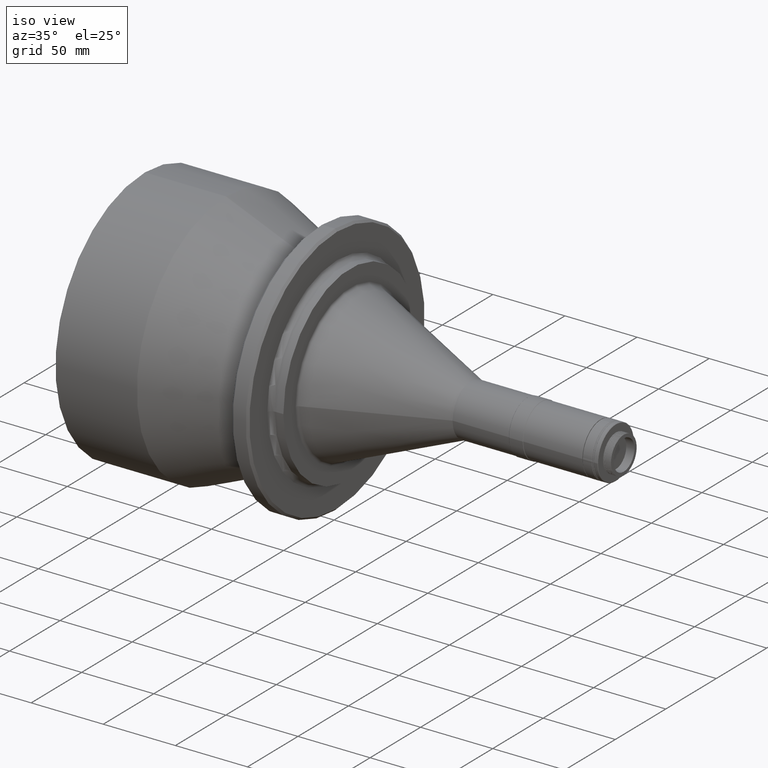
[diagram: clean part render]
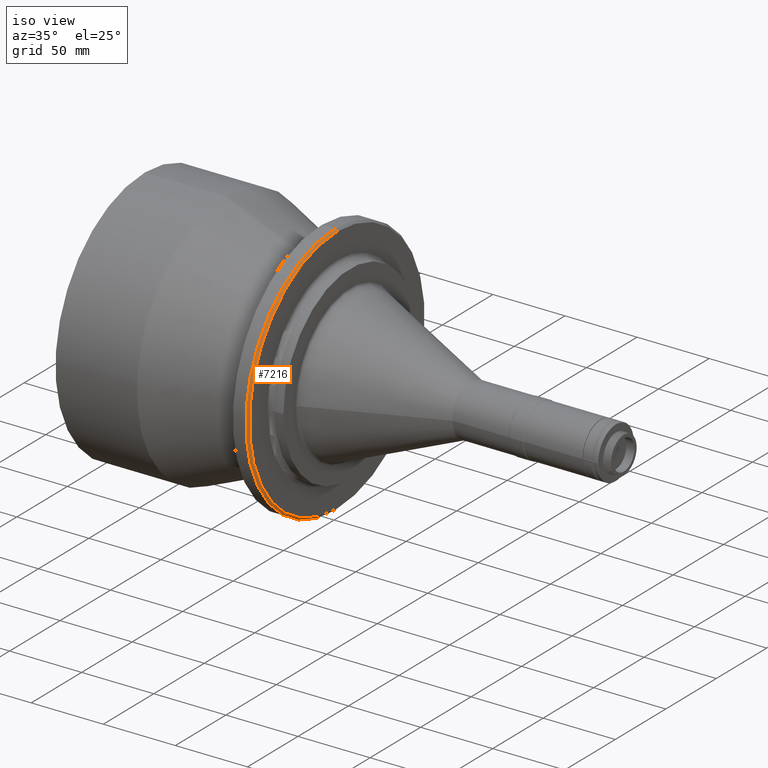
[diagram: same view with one face highlighted and labeled with its STEP entity id]
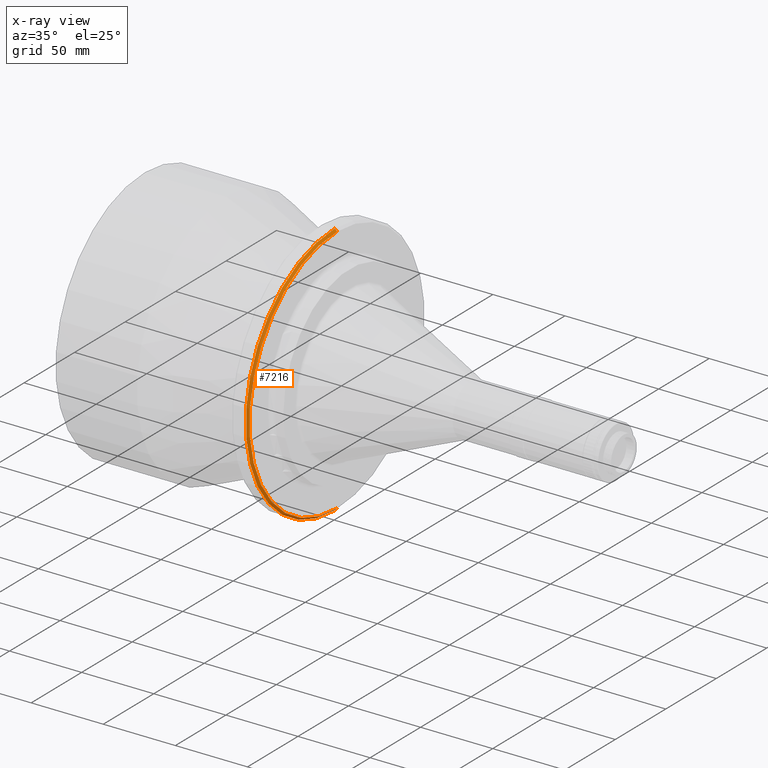
[diagram: x-ray of the same camera — body ghosted, the highlighted face saturated]
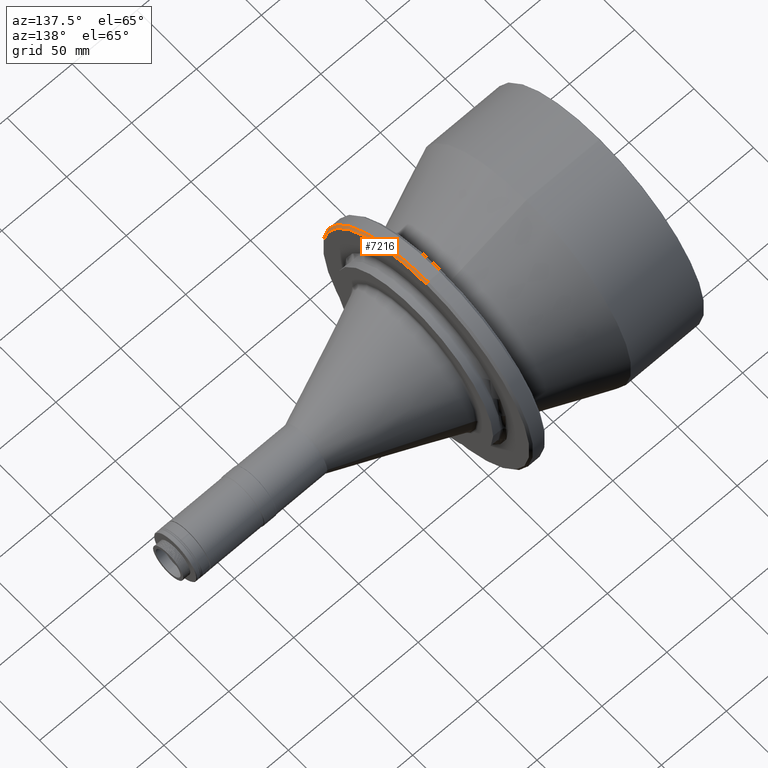
[diagram: same view with one face highlighted and labeled with its STEP entity id]
A machine part, iso view. The second image highlights one B-rep face of the part: STEP entity #7216.
The next image is the same camera in x-ray: the body ghosted, the highlighted face saturated — about 0% of this face is hidden behind the body in this view.
A second angle (auxiliary view) of the same face is appended — the face is thin or edge-on in the first view.
In plain terms, the highlighted conical surface has half-angle 45 deg.
Its self-contained STEP definition (entity closure, byte-faithful):
#183 = DIRECTION ( 'NONE',  ( -0.7071067812025821900, 8.659560562158566900E-017, -0.7071067811705130700 ) ) ;
#256 = VERTEX_POINT ( 'NONE', #555 ) ;
#536 = DIRECTION ( 'NONE',  ( 1.000000000000000000, -0.0000000000000000000, -0.0000000000000000000 ) ) ;
#555 = CARTESIAN_POINT ( 'NONE',  ( 152.0389117163250600, 7.530002005659218300E-013, -154.9731538714589500 ) ) ;
#605 = EDGE_CURVE ( 'NONE', #2255, #1707, #4119, .T. ) ;
#908 = CIRCLE ( 'NONE', #5573, 86.74999999965893900 ) ;
#1033 = CARTESIAN_POINT ( 'NONE',  ( 152.0389117163250600, 7.422845410734001900E-013, 18.52684612785893100 ) ) ;
#1079 = DIRECTION ( 'NONE',  ( 0.0000000000000000000, 0.0000000000000000000, 1.000000000000000000 ) ) ;
#1411 = DIRECTION ( 'NONE',  ( 0.0000000000000000000, 0.0000000000000000000, 1.000000000000000000 ) ) ;
#1648 = DIRECTION ( 'NONE',  ( 1.000000000000000000, 0.0000000000000000000, 0.0000000000000000000 ) ) ;
#1707 = VERTEX_POINT ( 'NONE', #5954 ) ;
#1998 = DIRECTION ( 'NONE',  ( -1.000000000000000000, 0.0000000000000000000, 0.0000000000000000000 ) ) ;
#2192 = LINE ( 'NONE', #5920, #4093 ) ;
#2255 = VERTEX_POINT ( 'NONE', #6569 ) ;
#2551 = CARTESIAN_POINT ( 'NONE',  ( 152.0389117163250600, 7.422845410734001900E-013, -68.22315387180000800 ) ) ;
#2776 = AXIS2_PLACEMENT_3D ( 'NONE', #2551, #1998, #1411 ) ;
#2812 = ORIENTED_EDGE ( 'NONE', *, *, #605, .T. ) ;
#2839 = CARTESIAN_POINT ( 'NONE',  ( 152.0389117163250600, 7.422845410734001900E-013, -68.22315387180000800 ) ) ;
#3004 = VECTOR ( 'NONE', #6131, 999.9999999999998900 ) ;
#3813 = ORIENTED_EDGE ( 'NONE', *, *, #4916, .F. ) ;
#4093 = VECTOR ( 'NONE', #183, 999.9999999999998900 ) ;
#4113 = EDGE_CURVE ( 'NONE', #5982, #2255, #4554, .T. ) ;
#4119 = CIRCLE ( 'NONE', #5991, 88.25000000004000400 ) ;
#4255 = EDGE_CURVE ( 'NONE', #5982, #256, #908, .T. ) ;
#4554 = LINE ( 'NONE', #6763, #3004 ) ;
#4600 = CARTESIAN_POINT ( 'NONE',  ( 150.5389117158626100, 0.0000000000000000000, -68.22315387180000800 ) ) ;
#4916 = EDGE_CURVE ( 'NONE', #256, #1707, #2192, .T. ) ;
#5054 = CONICAL_SURFACE ( 'NONE', #2776, 86.74999999965893900, 0.7853981633747719700 ) ;
#5070 = DIRECTION ( 'NONE',  ( 0.0000000000000000000, 0.0000000000000000000, 1.000000000000000000 ) ) ;
#5450 = ORIENTED_EDGE ( 'NONE', *, *, #4113, .T. ) ;
#5573 = AXIS2_PLACEMENT_3D ( 'NONE', #2839, #536, #5070 ) ;
#5920 = CARTESIAN_POINT ( 'NONE',  ( 152.0389117163250600, 7.529083520559616800E-013, -154.9731538714589500 ) ) ;
#5954 = CARTESIAN_POINT ( 'NONE',  ( 150.5389117158626100, 7.530920490758820900E-013, -156.4731538718533600 ) ) ;
#5982 = VERTEX_POINT ( 'NONE', #1033 ) ;
#5991 = AXIS2_PLACEMENT_3D ( 'NONE', #4600, #1648, #1079 ) ;
#6045 = FACE_OUTER_BOUND ( 'NONE', #6508, .T. ) ;
#6131 = DIRECTION ( 'NONE',  ( -0.7071067812025821900, 0.0000000000000000000, 0.7071067811705130700 ) ) ;
#6508 = EDGE_LOOP ( 'NONE', ( #3813, #7187, #5450, #2812 ) ) ;
#6569 = CARTESIAN_POINT ( 'NONE',  ( 150.5389117158626100, 7.422845410734001900E-013, 20.02684612825333900 ) ) ;
#6763 = CARTESIAN_POINT ( 'NONE',  ( 152.0389117163250600, 7.422845410734001900E-013, 18.52684612785893100 ) ) ;
#7187 = ORIENTED_EDGE ( 'NONE', *, *, #4255, .F. ) ;
#7216 = ADVANCED_FACE ( 'NONE', ( #6045 ), #5054, .T. ) ;